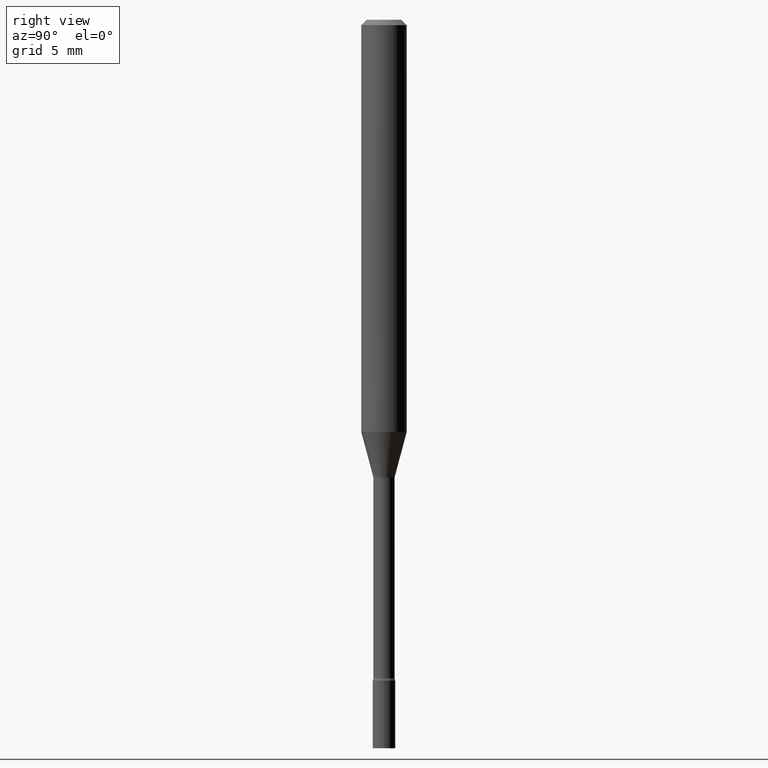
[diagram: clean part render]
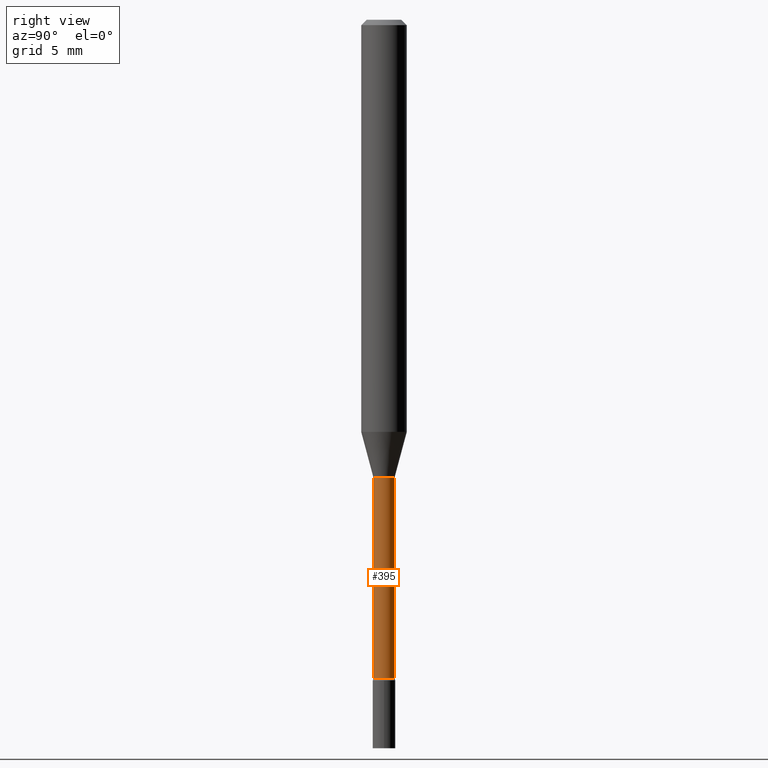
[diagram: same view with one face highlighted and labeled with its STEP entity id]
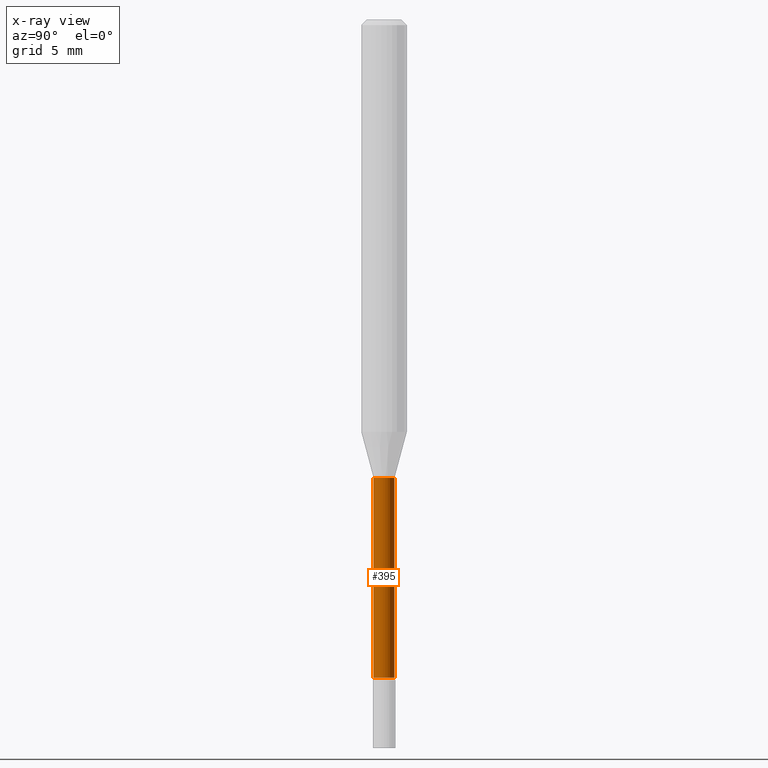
[diagram: x-ray of the same camera — body ghosted, the highlighted face saturated]
A machine part, right view. The second image highlights one B-rep face of the part: STEP entity #395.
The next image is the same camera in x-ray: the body ghosted, the highlighted face saturated — about 0% of this face is hidden behind the body in this view.
In plain terms, the highlighted cylindrical surface (edge-blend (fillet) strip) has radius 0.7404 mm, axis along (-0, 0, 1).
Its self-contained STEP definition (entity closure, byte-faithful):
#5 = ORIENTED_EDGE ( 'NONE', *, *, #484, .T. ) ;
#10 = DIRECTION ( 'NONE',  ( -2.445484289899004441E-29, 3.491459165283608799E-15, 1.000000000000000000 ) ) ;
#14 = CARTESIAN_POINT ( 'NONE',  ( 3.076357579831788699E-29, -4.392167601386222842E-15, -1.257974787463810973 ) ) ;
#15 = FACE_OUTER_BOUND ( 'NONE', #483, .T. ) ;
#17 = VECTOR ( 'NONE', #404, 39.37007874015748143 ) ;
#26 = CARTESIAN_POINT ( 'NONE',  ( 2.071232074741135693E-16, 0.02914999999999561345, -1.257974787463810973 ) ) ;
#33 = CARTESIAN_POINT ( 'NONE',  ( 2.071232074740693438E-16, 0.02915000000000002311, -1.017760346680172786E-16 ) ) ;
#34 = CARTESIAN_POINT ( 'NONE',  ( -2.035533620545239461E-16, -0.02915000000000439809, -1.257974787463810973 ) ) ;
#40 = DIRECTION ( 'NONE',  ( -6.982962677686266711E-15, -1.000000000000000000, 0.000000000000000000 ) ) ;
#45 = DIRECTION ( 'NONE',  ( -2.445484289899004441E-29, 3.491459165283608799E-15, 1.000000000000000000 ) ) ;
#70 = CARTESIAN_POINT ( 'NONE',  ( -2.035533620545548349E-16, -0.02915000000000002311, 1.017760346680172786E-16 ) ) ;
#71 = DIRECTION ( 'NONE',  ( -2.445484289899004441E-29, 3.491459165283608405E-15, 1.000000000000000000 ) ) ;
#85 = EDGE_CURVE ( 'NONE', #330, #242, #348, .T. ) ;
#102 = CARTESIAN_POINT ( 'NONE',  ( -2.035533620545107573E-16, -0.02915000000000635139, -1.806783525791634704 ) ) ;
#104 = VECTOR ( 'NONE', #71, 39.37007874015748143 ) ;
#124 = AXIS2_PLACEMENT_3D ( 'NONE', #326, #45, #500 ) ;
#135 = ORIENTED_EDGE ( 'NONE', *, *, #370, .F. ) ;
#172 = VERTEX_POINT ( 'NONE', #34 ) ;
#187 = CIRCLE ( 'NONE', #317, 0.02915000000000000577 ) ;
#199 = LINE ( 'NONE', #70, #17 ) ;
#224 = VERTEX_POINT ( 'NONE', #26 ) ;
#227 = CARTESIAN_POINT ( 'NONE',  ( 4.418460727571775110E-29, -6.308310900808636843E-15, -1.806783525791634704 ) ) ;
#237 = ORIENTED_EDGE ( 'NONE', *, *, #244, .F. ) ;
#242 = VERTEX_POINT ( 'NONE', #321 ) ;
#244 = EDGE_CURVE ( 'NONE', #330, #172, #199, .T. ) ;
#305 = LINE ( 'NONE', #33, #104 ) ;
#317 = AXIS2_PLACEMENT_3D ( 'NONE', #14, #10, #40 ) ;
#321 = CARTESIAN_POINT ( 'NONE',  ( 2.136957277798946103E-16, 0.02914999999999373301, -1.806783525791634704 ) ) ;
#326 = CARTESIAN_POINT ( 'NONE',  ( 0.000000000000000000, 0.000000000000000000, 0.000000000000000000 ) ) ;
#330 = VERTEX_POINT ( 'NONE', #102 ) ;
#348 = CIRCLE ( 'NONE', #406, 0.02915000000000004046 ) ;
#370 = EDGE_CURVE ( 'NONE', #172, #224, #187, .T. ) ;
#395 = ADVANCED_FACE ( 'NONE', ( #15 ), #481, .T. ) ;
#404 = DIRECTION ( 'NONE',  ( -2.445484289899004441E-29, 3.491459165283608405E-15, 1.000000000000000000 ) ) ;
#406 = AXIS2_PLACEMENT_3D ( 'NONE', #227, #429, #503 ) ;
#429 = DIRECTION ( 'NONE',  ( -2.445484289899004441E-29, 3.491459165283608799E-15, 1.000000000000000000 ) ) ;
#481 = CYLINDRICAL_SURFACE ( 'NONE', #124, 0.02915000000000002311 ) ;
#483 = EDGE_LOOP ( 'NONE', ( #496, #5, #135, #237 ) ) ;
#484 = EDGE_CURVE ( 'NONE', #242, #224, #305, .T. ) ;
#496 = ORIENTED_EDGE ( 'NONE', *, *, #85, .T. ) ;
#500 = DIRECTION ( 'NONE',  ( -6.982962677686266711E-15, -1.000000000000000000, 3.491459165283608799E-15 ) ) ;
#503 = DIRECTION ( 'NONE',  ( -6.982962677686266711E-15, -1.000000000000000000, 0.000000000000000000 ) ) ;